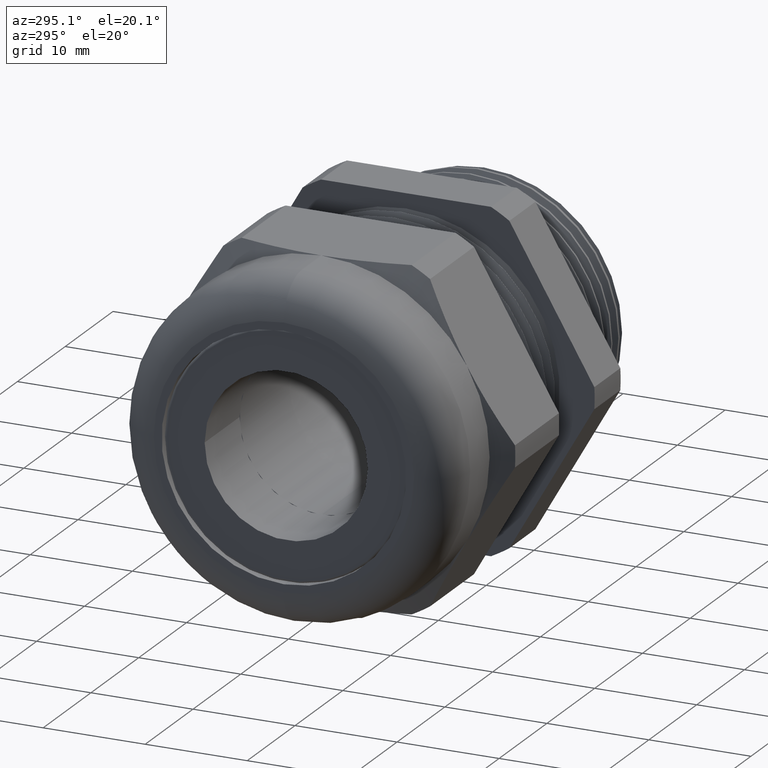
[diagram: clean part render]
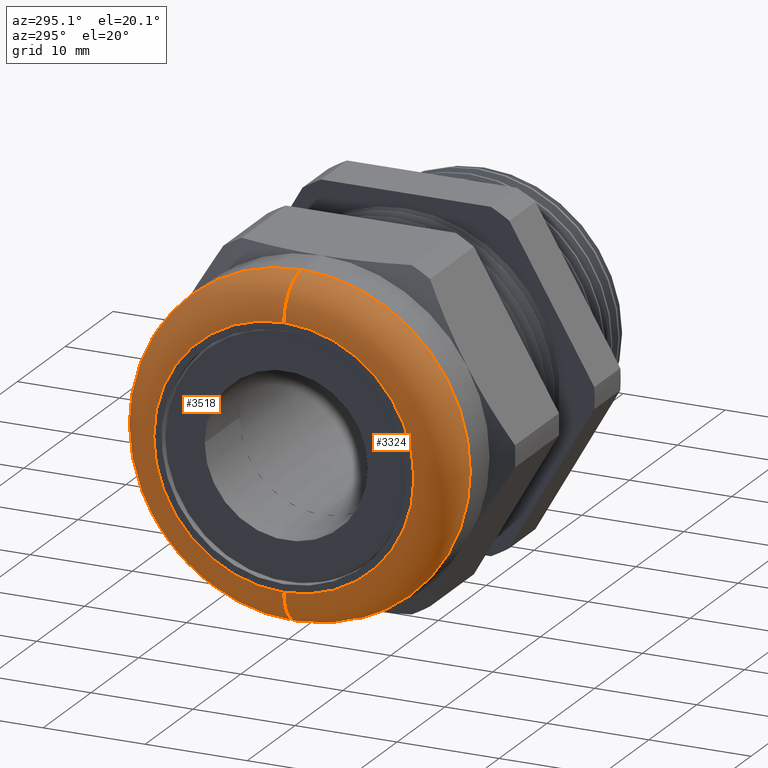
[diagram: same view with one multi-face feature highlighted, each face labeled with its STEP entity id]
A machine part, auxiliary view. The highlighted faces form ONE feature: a constant-radius fillet chain: 2 tangent blend faces with common blend radius 3.7592 mm. The faces share edges in the B-rep.
Their STEP definitions:
[1] entity #3518 (Torus):
#2656 = DIRECTION ( 'NONE',  ( 0.0000000000000000000, 0.0000000000000000000, -1.000000000000000000 ) ) ;
#2657 = DIRECTION ( 'NONE',  ( 0.0000000000000000000, -1.000000000000000000, 0.0000000000000000000 ) ) ;
#2658 = AXIS2_PLACEMENT_3D ( 'NONE', #2664, #2657, #2656 ) ;
#2659 = CIRCLE ( 'NONE', #2658, 0.1480000000000000200 ) ;
#2664 = CARTESIAN_POINT ( 'NONE',  ( -1.071999999999999800, 0.0000000000000000000, -0.5019999999999997800 ) ) ;
#2684 = CARTESIAN_POINT ( 'NONE',  ( -1.071999999999999800, 7.960204194457793000E-017, -0.6499999999999998000 ) ) ;
#2690 = CARTESIAN_POINT ( 'NONE',  ( -1.220000000000000000, 0.0000000000000000000, -0.5019999999999997800 ) ) ;
#2691 = CARTESIAN_POINT ( 'NONE',  ( -1.220000000000000000, 7.053965563088752400E-017, 0.5019999999999997800 ) ) ;
#2692 = DIRECTION ( 'NONE',  ( 0.0000000000000000000, 1.224646799147353900E-016, 1.000000000000000000 ) ) ;
#2693 = DIRECTION ( 'NONE',  ( 0.0000000000000000000, 1.000000000000000000, -1.224646799147353200E-016 ) ) ;
#2694 = CARTESIAN_POINT ( 'NONE',  ( -1.071999999999999800, 6.147726931719710600E-017, 0.5019999999999997800 ) ) ;
#2695 = AXIS2_PLACEMENT_3D ( 'NONE', #2694, #2693, #2692 ) ;
#2696 = CIRCLE ( 'NONE', #2695, 0.1480000000000000200 ) ;
#2697 = DIRECTION ( 'NONE',  ( 0.0000000000000000000, 0.0000000000000000000, -1.000000000000000000 ) ) ;
#2698 = DIRECTION ( 'NONE',  ( -1.000000000000000000, 0.0000000000000000000, 0.0000000000000000000 ) ) ;
#2699 = AXIS2_PLACEMENT_3D ( 'NONE', #2705, #2698, #2697 ) ;
#2700 = CIRCLE ( 'NONE', #2699, 0.5019999999999997800 ) ;
#2705 = CARTESIAN_POINT ( 'NONE',  ( -1.220000000000000000, 0.0000000000000000000, 0.0000000000000000000 ) ) ;
#2708 = DIRECTION ( 'NONE',  ( 0.0000000000000000000, 0.0000000000000000000, -1.000000000000000000 ) ) ;
#2709 = DIRECTION ( 'NONE',  ( 1.000000000000000000, 0.0000000000000000000, 0.0000000000000000000 ) ) ;
#2710 = CARTESIAN_POINT ( 'NONE',  ( -1.071999999999999800, 0.0000000000000000000, 0.0000000000000000000 ) ) ;
#2711 = AXIS2_PLACEMENT_3D ( 'NONE', #2710, #2709, #2708 ) ;
#2712 = CIRCLE ( 'NONE', #2711, 0.6499999999999998000 ) ;
#2713 = CARTESIAN_POINT ( 'NONE',  ( -1.071999999999999800, 0.0000000000000000000, 0.6499999999999998000 ) ) ;
#2733 = DIRECTION ( 'NONE',  ( 0.0000000000000000000, 0.0000000000000000000, -1.000000000000000000 ) ) ;
#2734 = DIRECTION ( 'NONE',  ( 1.000000000000000000, 0.0000000000000000000, 0.0000000000000000000 ) ) ;
#2735 = AXIS2_PLACEMENT_3D ( 'NONE', #2737, #2734, #2733 ) ;
#2736 = TOROIDAL_SURFACE ( 'NONE', #2735, 0.5019999999999997800, 0.1480000000000000500 ) ;
#2737 = CARTESIAN_POINT ( 'NONE',  ( -1.071999999999999800, 0.0000000000000000000, 0.0000000000000000000 ) ) ;
#2738 = FACE_OUTER_BOUND ( 'NONE', #3506, .T. ) ;
#3470 = VERTEX_POINT ( 'NONE', #2684 ) ;
#3483 = EDGE_CURVE ( 'NONE', #3504, #3470, #2659, .T. ) ;
#3486 = ORIENTED_EDGE ( 'NONE', *, *, #3483, .F. ) ;
#3491 = VERTEX_POINT ( 'NONE', #2713 ) ;
#3492 = ORIENTED_EDGE ( 'NONE', *, *, #3497, .F. ) ;
#3497 = EDGE_CURVE ( 'NONE', #3470, #3491, #2712, .T. ) ;
#3500 = EDGE_CURVE ( 'NONE', #3503, #3504, #2700, .T. ) ;
#3501 = EDGE_CURVE ( 'NONE', #3503, #3491, #2696, .T. ) ;
#3502 = ORIENTED_EDGE ( 'NONE', *, *, #3501, .T. ) ;
#3503 = VERTEX_POINT ( 'NONE', #2691 ) ;
#3504 = VERTEX_POINT ( 'NONE', #2690 ) ;
#3506 = EDGE_LOOP ( 'NONE', ( #3507, #3502, #3492, #3486 ) ) ;
#3507 = ORIENTED_EDGE ( 'NONE', *, *, #3500, .F. ) ;
#3518 = ADVANCED_FACE ( 'NONE', ( #2738 ), #2736, .T. ) ;
[2] entity #3324 (Torus):
#502 = EDGE_CURVE ( 'NONE', #3504, #3503, #1407, .T. ) ;
#1403 = DIRECTION ( 'NONE',  ( 0.0000000000000000000, 0.0000000000000000000, -1.000000000000000000 ) ) ;
#1404 = DIRECTION ( 'NONE',  ( -1.000000000000000000, 0.0000000000000000000, 0.0000000000000000000 ) ) ;
#1405 = CARTESIAN_POINT ( 'NONE',  ( -1.220000000000000000, 0.0000000000000000000, 0.0000000000000000000 ) ) ;
#1406 = AXIS2_PLACEMENT_3D ( 'NONE', #1405, #1404, #1403 ) ;
#1407 = CIRCLE ( 'NONE', #1406, 0.5019999999999997800 ) ;
#2389 = FACE_OUTER_BOUND ( 'NONE', #3323, .T. ) ;
#2449 = DIRECTION ( 'NONE',  ( 0.0000000000000000000, 0.0000000000000000000, -1.000000000000000000 ) ) ;
#2450 = DIRECTION ( 'NONE',  ( 1.000000000000000000, 0.0000000000000000000, 0.0000000000000000000 ) ) ;
#2451 = CARTESIAN_POINT ( 'NONE',  ( -1.071999999999999800, 0.0000000000000000000, 0.0000000000000000000 ) ) ;
#2452 = AXIS2_PLACEMENT_3D ( 'NONE', #2451, #2450, #2449 ) ;
#2453 = TOROIDAL_SURFACE ( 'NONE', #2452, 0.5019999999999997800, 0.1480000000000000500 ) ;
#2454 = DIRECTION ( 'NONE',  ( 0.0000000000000000000, 0.0000000000000000000, -1.000000000000000000 ) ) ;
#2456 = DIRECTION ( 'NONE',  ( 1.000000000000000000, 0.0000000000000000000, 0.0000000000000000000 ) ) ;
#2457 = CARTESIAN_POINT ( 'NONE',  ( -1.071999999999999800, 0.0000000000000000000, 0.0000000000000000000 ) ) ;
#2458 = AXIS2_PLACEMENT_3D ( 'NONE', #2457, #2456, #2454 ) ;
#2463 = CIRCLE ( 'NONE', #2458, 0.6499999999999998000 ) ;
#2656 = DIRECTION ( 'NONE',  ( 0.0000000000000000000, 0.0000000000000000000, -1.000000000000000000 ) ) ;
#2657 = DIRECTION ( 'NONE',  ( 0.0000000000000000000, -1.000000000000000000, 0.0000000000000000000 ) ) ;
#2658 = AXIS2_PLACEMENT_3D ( 'NONE', #2664, #2657, #2656 ) ;
#2659 = CIRCLE ( 'NONE', #2658, 0.1480000000000000200 ) ;
#2664 = CARTESIAN_POINT ( 'NONE',  ( -1.071999999999999800, 0.0000000000000000000, -0.5019999999999997800 ) ) ;
#2684 = CARTESIAN_POINT ( 'NONE',  ( -1.071999999999999800, 7.960204194457793000E-017, -0.6499999999999998000 ) ) ;
#2690 = CARTESIAN_POINT ( 'NONE',  ( -1.220000000000000000, 0.0000000000000000000, -0.5019999999999997800 ) ) ;
#2691 = CARTESIAN_POINT ( 'NONE',  ( -1.220000000000000000, 7.053965563088752400E-017, 0.5019999999999997800 ) ) ;
#2692 = DIRECTION ( 'NONE',  ( 0.0000000000000000000, 1.224646799147353900E-016, 1.000000000000000000 ) ) ;
#2693 = DIRECTION ( 'NONE',  ( 0.0000000000000000000, 1.000000000000000000, -1.224646799147353200E-016 ) ) ;
#2694 = CARTESIAN_POINT ( 'NONE',  ( -1.071999999999999800, 6.147726931719710600E-017, 0.5019999999999997800 ) ) ;
#2695 = AXIS2_PLACEMENT_3D ( 'NONE', #2694, #2693, #2692 ) ;
#2696 = CIRCLE ( 'NONE', #2695, 0.1480000000000000200 ) ;
#2713 = CARTESIAN_POINT ( 'NONE',  ( -1.071999999999999800, 0.0000000000000000000, 0.6499999999999998000 ) ) ;
#3321 = ORIENTED_EDGE ( 'NONE', *, *, #502, .F. ) ;
#3322 = ORIENTED_EDGE ( 'NONE', *, *, #3483, .T. ) ;
#3323 = EDGE_LOOP ( 'NONE', ( #3325, #3321, #3322, #3339 ) ) ;
#3324 = ADVANCED_FACE ( 'NONE', ( #2389 ), #2453, .T. ) ;
#3325 = ORIENTED_EDGE ( 'NONE', *, *, #3501, .F. ) ;
#3339 = ORIENTED_EDGE ( 'NONE', *, *, #3368, .F. ) ;
#3368 = EDGE_CURVE ( 'NONE', #3491, #3470, #2463, .T. ) ;
#3470 = VERTEX_POINT ( 'NONE', #2684 ) ;
#3483 = EDGE_CURVE ( 'NONE', #3504, #3470, #2659, .T. ) ;
#3491 = VERTEX_POINT ( 'NONE', #2713 ) ;
#3501 = EDGE_CURVE ( 'NONE', #3503, #3491, #2696, .T. ) ;
#3503 = VERTEX_POINT ( 'NONE', #2691 ) ;
#3504 = VERTEX_POINT ( 'NONE', #2690 ) ;